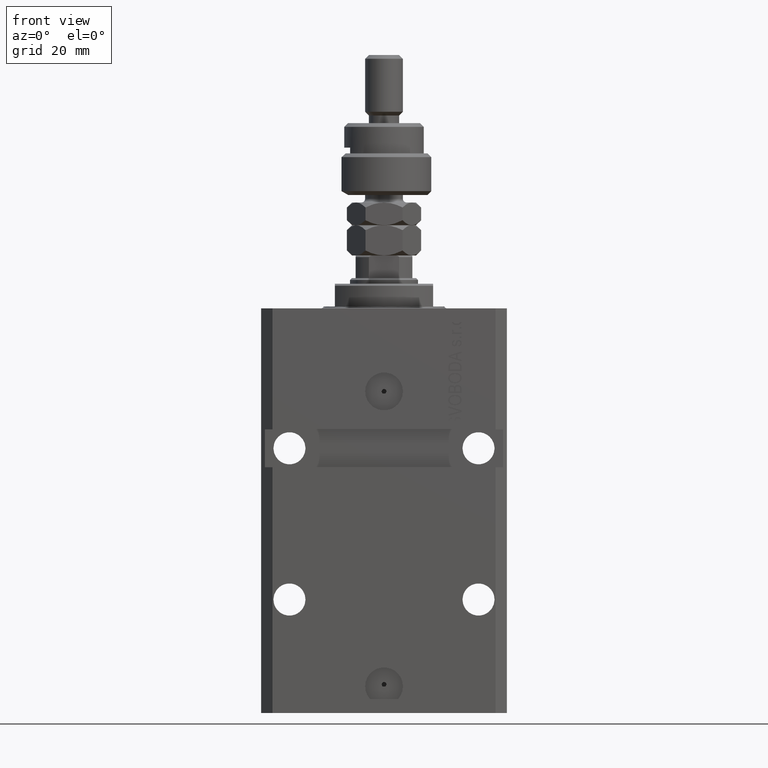
[diagram: clean part render]
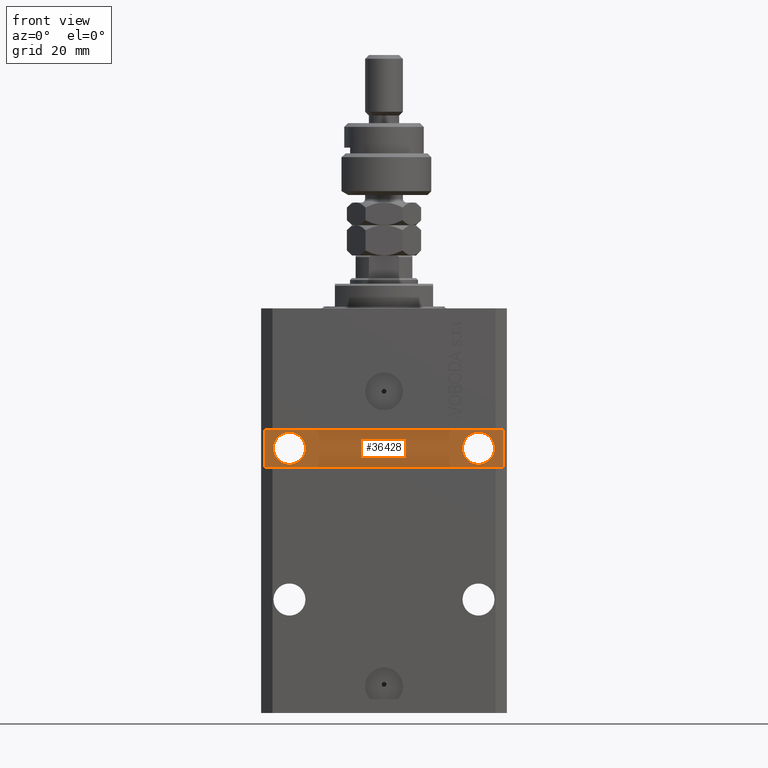
[diagram: same view with one face highlighted and labeled with its STEP entity id]
A machine part, front view. The second image highlights one B-rep face of the part: STEP entity #36428.
In plain terms, the highlighted planar face has unit normal (0, -1, 0).
Its self-contained STEP definition (entity closure, byte-faithful):
#46 = VERTEX_POINT ( 'NONE', #29342 ) ;
#349 = CARTESIAN_POINT ( 'NONE',  ( -31.49999999999650413, -20.49999999999950262, -32.00000000000000000 ) ) ;
#560 = CARTESIAN_POINT ( 'NONE',  ( 31.49999999999651124, -20.49999999999949196, -32.00000000000000711 ) ) ;
#577 = DIRECTION ( 'NONE',  ( 1.000000000000000000, 0.000000000000000000, 0.000000000000000000 ) ) ;
#1458 = ORIENTED_EDGE ( 'NONE', *, *, #25091, .F. ) ;
#2405 = ORIENTED_EDGE ( 'NONE', *, *, #17301, .F. ) ;
#2665 = ORIENTED_EDGE ( 'NONE', *, *, #38223, .F. ) ;
#3750 = CARTESIAN_POINT ( 'NONE',  ( 31.49999999999651124, -20.49999999999949551, -107.0000000000000000 ) ) ;
#4255 = DIRECTION ( 'NONE',  ( 0.000000000000000000, 0.000000000000000000, -1.000000000000000000 ) ) ;
#4636 = DIRECTION ( 'NONE',  ( 1.067522139062765303E-16, -1.000000000000000000, 0.000000000000000000 ) ) ;
#5440 = CARTESIAN_POINT ( 'NONE',  ( -20.75000000000621014, -20.49999999999950262, -37.00000000000000000 ) ) ;
#5649 = EDGE_CURVE ( 'NONE', #8801, #19475, #18992, .T. ) ;
#7968 = CARTESIAN_POINT ( 'NONE',  ( 2.166708070385810581E-15, -20.49999999999949907, 0.000000000000000000 ) ) ;
#8097 = LINE ( 'NONE', #3750, #17567 ) ;
#8224 = DIRECTION ( 'NONE',  ( 1.000000000000000000, 1.067522139062765303E-16, 0.000000000000000000 ) ) ;
#8293 = VERTEX_POINT ( 'NONE', #26367 ) ;
#8801 = VERTEX_POINT ( 'NONE', #5440 ) ;
#9045 = CARTESIAN_POINT ( 'NONE',  ( -31.49999999999650413, -20.49999999999949907, -41.99999999999999289 ) ) ;
#9482 = DIRECTION ( 'NONE',  ( 1.000000000000000000, 0.000000000000000000, 0.000000000000000000 ) ) ;
#11188 = LINE ( 'NONE', #49744, #36245 ) ;
#11462 = VERTEX_POINT ( 'NONE', #349 ) ;
#11654 = DIRECTION ( 'NONE',  ( 1.101411730780568590E-16, -1.000000000000000000, 0.000000000000000000 ) ) ;
#12058 = FACE_OUTER_BOUND ( 'NONE', #12064, .T. ) ;
#12064 = EDGE_LOOP ( 'NONE', ( #27386, #21290, #33517, #1458 ) ) ;
#12282 = VECTOR ( 'NONE', #44955, 1000.000000000000000 ) ;
#13071 = AXIS2_PLACEMENT_3D ( 'NONE', #30492, #35579, #577 ) ;
#13585 = AXIS2_PLACEMENT_3D ( 'NONE', #17145, #28901, #9482 ) ;
#14082 = EDGE_LOOP ( 'NONE', ( #2405, #2665 ) ) ;
#14746 = DIRECTION ( 'NONE',  ( 1.000000000000000000, 1.067522139062765303E-16, 1.067522139062765303E-16 ) ) ;
#15642 = FACE_BOUND ( 'NONE', #42175, .T. ) ;
#17145 = CARTESIAN_POINT ( 'NONE',  ( 25.00000000000000711, -20.49999999999949551, -36.99999999999999289 ) ) ;
#17301 = EDGE_CURVE ( 'NONE', #8293, #30150, #35596, .T. ) ;
#17567 = VECTOR ( 'NONE', #4255, 1000.000000000000000 ) ;
#17844 = CARTESIAN_POINT ( 'NONE',  ( -29.24999999999377920, -20.49999999999950262, -37.00000000000000000 ) ) ;
#18992 = CIRCLE ( 'NONE', #26348, 4.249999999993782751 ) ;
#19475 = VERTEX_POINT ( 'NONE', #17844 ) ;
#21290 = ORIENTED_EDGE ( 'NONE', *, *, #22377, .F. ) ;
#22377 = EDGE_CURVE ( 'NONE', #29394, #11462, #11188, .T. ) ;
#22411 = LINE ( 'NONE', #38742, #32217 ) ;
#24331 = EDGE_CURVE ( 'NONE', #29394, #46, #22411, .T. ) ;
#25091 = EDGE_CURVE ( 'NONE', #29655, #46, #8097, .T. ) ;
#25186 = CARTESIAN_POINT ( 'NONE',  ( -24.99999999999999289, -20.49999999999950262, -37.00000000000000000 ) ) ;
#26271 = CARTESIAN_POINT ( 'NONE',  ( 20.75000000001095657, -20.49999999999949551, -36.99999999999999289 ) ) ;
#26348 = AXIS2_PLACEMENT_3D ( 'NONE', #25186, #48671, #45597 ) ;
#26367 = CARTESIAN_POINT ( 'NONE',  ( 29.24999999998905764, -20.49999999999949551, -36.99999999999999289 ) ) ;
#27026 = DIRECTION ( 'NONE',  ( 0.000000000000000000, 0.000000000000000000, 1.000000000000000000 ) ) ;
#27386 = ORIENTED_EDGE ( 'NONE', *, *, #47596, .T. ) ;
#28901 = DIRECTION ( 'NONE',  ( 1.394545208792185644E-16, -1.000000000000000000, 1.232595164407830946E-32 ) ) ;
#29342 = CARTESIAN_POINT ( 'NONE',  ( 31.49999999999650413, -20.49999999999949196, -41.99999999999998579 ) ) ;
#29394 = VERTEX_POINT ( 'NONE', #9045 ) ;
#29655 = VERTEX_POINT ( 'NONE', #560 ) ;
#30150 = VERTEX_POINT ( 'NONE', #26271 ) ;
#30492 = CARTESIAN_POINT ( 'NONE',  ( 25.00000000000000711, -20.49999999999949551, -36.99999999999999289 ) ) ;
#31104 = AXIS2_PLACEMENT_3D ( 'NONE', #46401, #11654, #42306 ) ;
#32217 = VECTOR ( 'NONE', #14746, 1000.000000000000000 ) ;
#32695 = CARTESIAN_POINT ( 'NONE',  ( 32.49999999999650413, -20.49999999999949196, -32.00000000000000711 ) ) ;
#32740 = CIRCLE ( 'NONE', #31104, 4.249999999993782751 ) ;
#33517 = ORIENTED_EDGE ( 'NONE', *, *, #24331, .T. ) ;
#35028 = FACE_BOUND ( 'NONE', #14082, .T. ) ;
#35579 = DIRECTION ( 'NONE',  ( 1.394545208792185644E-16, -1.000000000000000000, 1.232595164407830946E-32 ) ) ;
#35596 = CIRCLE ( 'NONE', #13585, 4.249999999989050536 ) ;
#35623 = ORIENTED_EDGE ( 'NONE', *, *, #5649, .F. ) ;
#36245 = VECTOR ( 'NONE', #27026, 1000.000000000000000 ) ;
#36428 = ADVANCED_FACE ( 'NONE', ( #35028, #15642, #12058 ), #42958, .T. ) ;
#36782 = LINE ( 'NONE', #32695, #12282 ) ;
#38223 = EDGE_CURVE ( 'NONE', #30150, #8293, #46502, .T. ) ;
#38742 = CARTESIAN_POINT ( 'NONE',  ( -32.49999999999650413, -20.49999999999949907, -41.99999999999999289 ) ) ;
#42175 = EDGE_LOOP ( 'NONE', ( #35623, #44850 ) ) ;
#42306 = DIRECTION ( 'NONE',  ( 1.000000000000000000, 0.000000000000000000, 0.000000000000000000 ) ) ;
#42958 = PLANE ( 'NONE',  #45617 ) ;
#44290 = EDGE_CURVE ( 'NONE', #19475, #8801, #32740, .T. ) ;
#44850 = ORIENTED_EDGE ( 'NONE', *, *, #44290, .F. ) ;
#44955 = DIRECTION ( 'NONE',  ( -1.000000000000000000, -1.067522139062765303E-16, 1.067522139062765303E-16 ) ) ;
#45597 = DIRECTION ( 'NONE',  ( 1.000000000000000000, 0.000000000000000000, 0.000000000000000000 ) ) ;
#45617 = AXIS2_PLACEMENT_3D ( 'NONE', #7968, #4636, #8224 ) ;
#46401 = CARTESIAN_POINT ( 'NONE',  ( -24.99999999999999289, -20.49999999999950262, -37.00000000000000000 ) ) ;
#46502 = CIRCLE ( 'NONE', #13071, 4.249999999989050536 ) ;
#47596 = EDGE_CURVE ( 'NONE', #29655, #11462, #36782, .T. ) ;
#48671 = DIRECTION ( 'NONE',  ( 1.101411730780568590E-16, -1.000000000000000000, 0.000000000000000000 ) ) ;
#49744 = CARTESIAN_POINT ( 'NONE',  ( -31.49999999999650413, -20.49999999999950262, -107.0000000000000000 ) ) ;